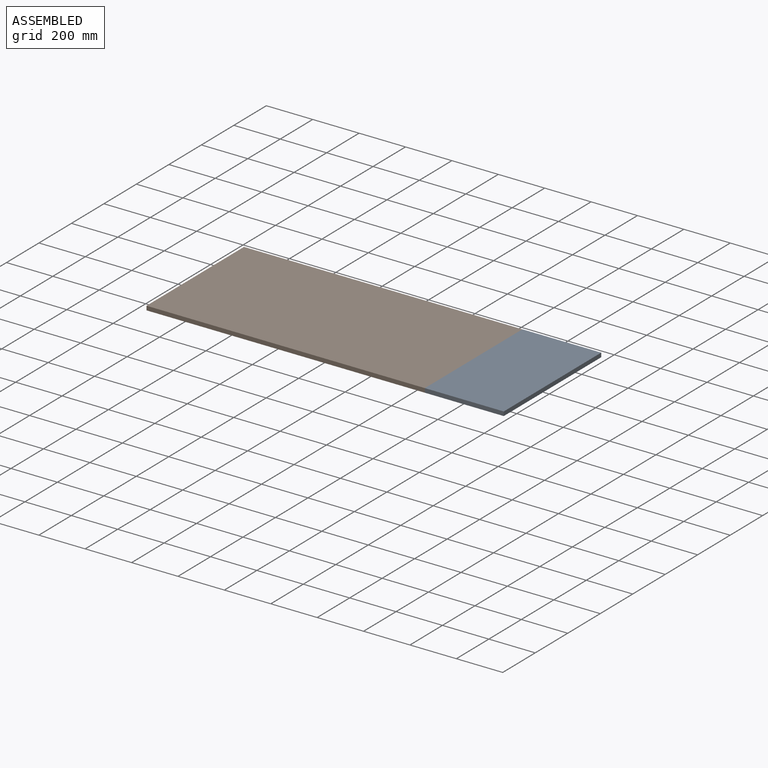
[diagram: assembled view]
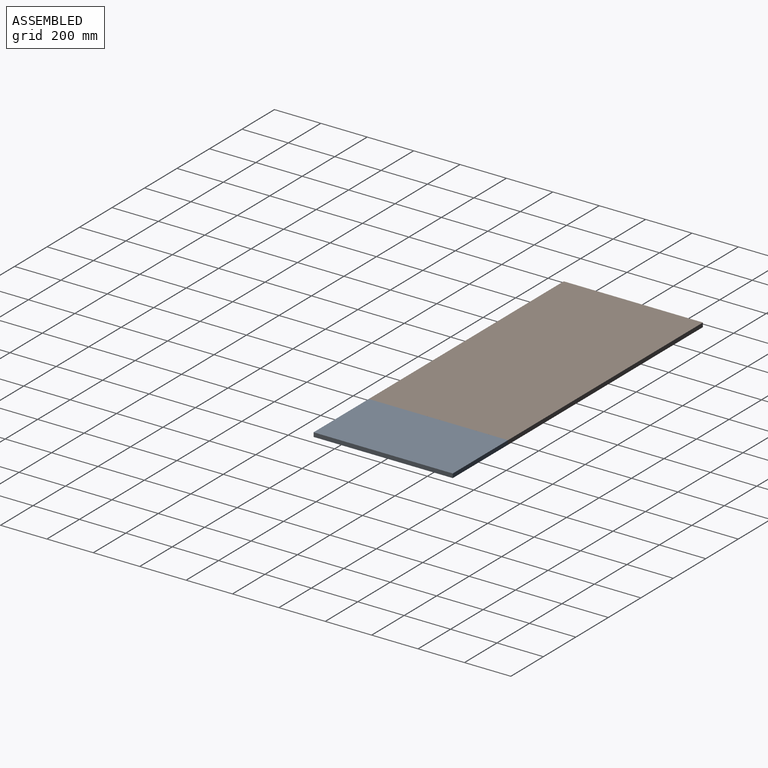
[diagram: assembled view, second angle]
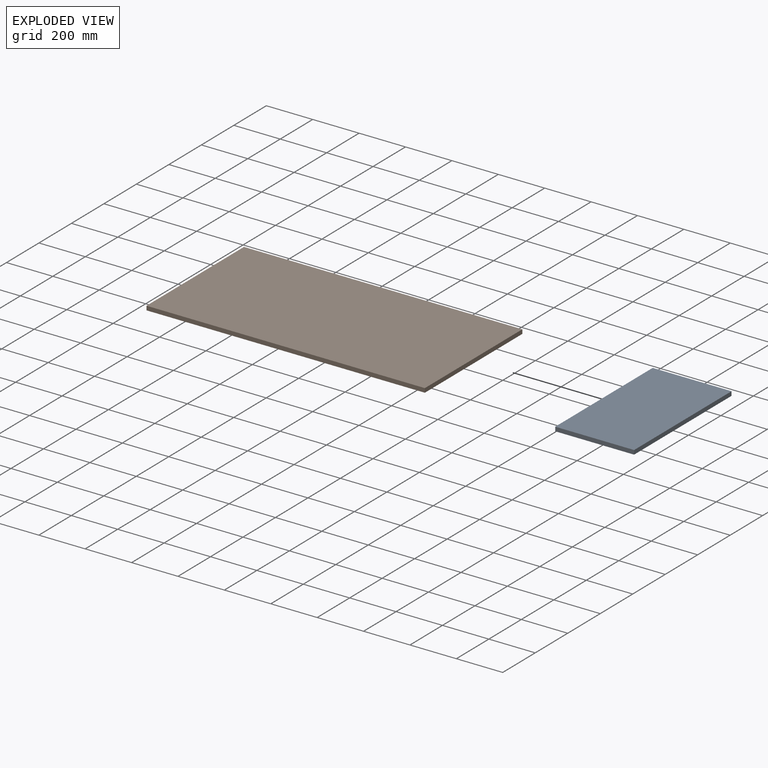
[diagram: exploded view]
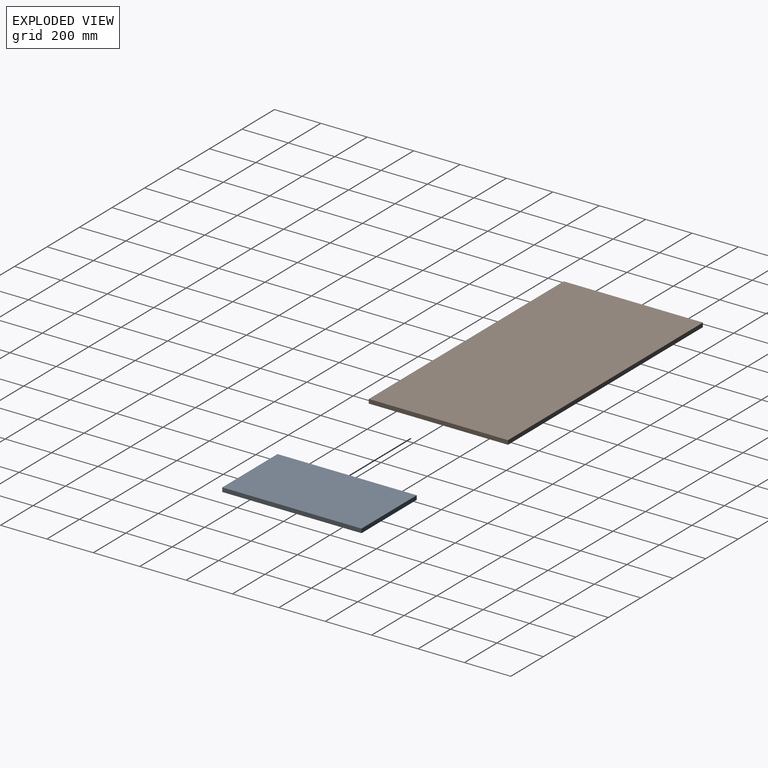
[diagram: exploded view, second angle]
ASSEMBLY  parts=2 mates=3
PART A: 6 faces, bbox 340x600x18 mm
  f0: plane 340x18mm, normal (0,-1,0), area 6120mm2, adj f1,f3,f4,f5
  f1: plane 600x18mm, normal (1,0,0), area 10800mm2, adj f0,f2,f4,f5
  f2: plane 340x18mm, normal (0,1,0), area 6120mm2, adj f1,f3,f4,f5
  f3: plane 600x18mm, normal (-1,0,0), area 10800mm2, adj f0,f2,f4,f5
  f4: plane 600x340mm, normal (0,0,1), area 204000mm2, adj f0,f1,f2,f3
  f5: plane 600x340mm, normal (0,0,-1), area 204000mm2, adj f0,f1,f2,f3
PART B: 6 faces, bbox 1200x600x18 mm
  f0: plane 1200x18mm, normal (0,1,0), area 21600mm2, adj f1,f3,f4,f5
  f1: plane 600x18mm, normal (-1,0,0), area 10800mm2, adj f0,f2,f4,f5
  f2: plane 1200x18mm, normal (0,-1,0), area 21600mm2, adj f1,f3,f4,f5
  f3: plane 600x18mm, normal (1,0,0), area 10800mm2, adj f0,f2,f4,f5
  f4: plane 1200x600mm, normal (0,0,1), area 720000mm2, adj f0,f1,f2,f3
  f5: plane 1200x600mm, normal (0,0,-1), area 720000mm2, adj f0,f1,f2,f3
PLACE A t=(604.95,12.93,370.05)mm
PLACE B t=(264.95,12.93,-361.95)mm
MATE planar B.f2 <-> A.f0  axis (0,-1,0) through (-335.05,-287.07,-352.95)mm
MATE planar B.f3 <-> A.f3  axis (1,0,0) through (264.95,12.93,-352.95)mm
MATE planar B.f4 <-> A.f4  axis (0,0,1) through (-335.05,12.93,-343.95)mm
